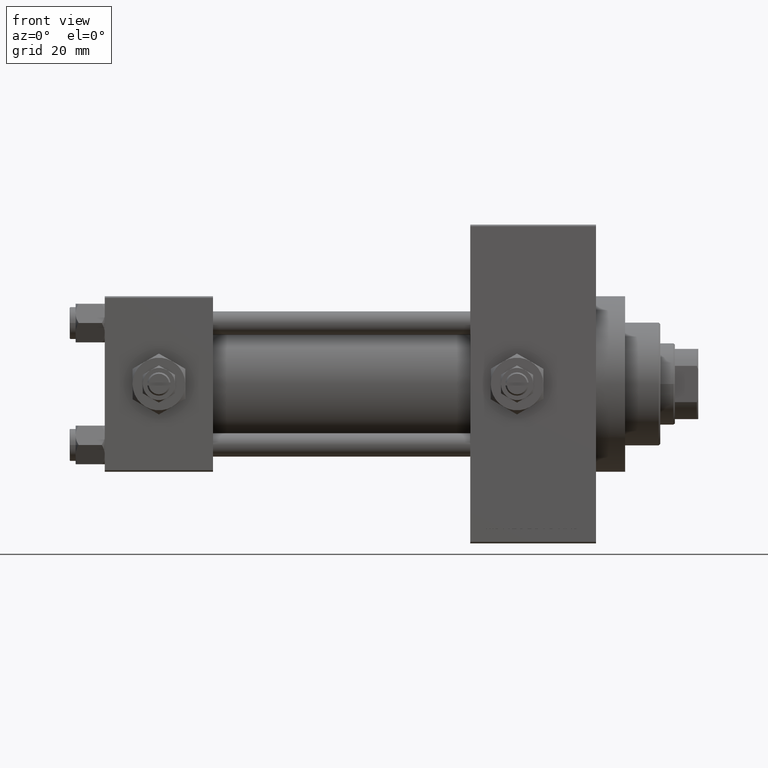
[diagram: clean part render]
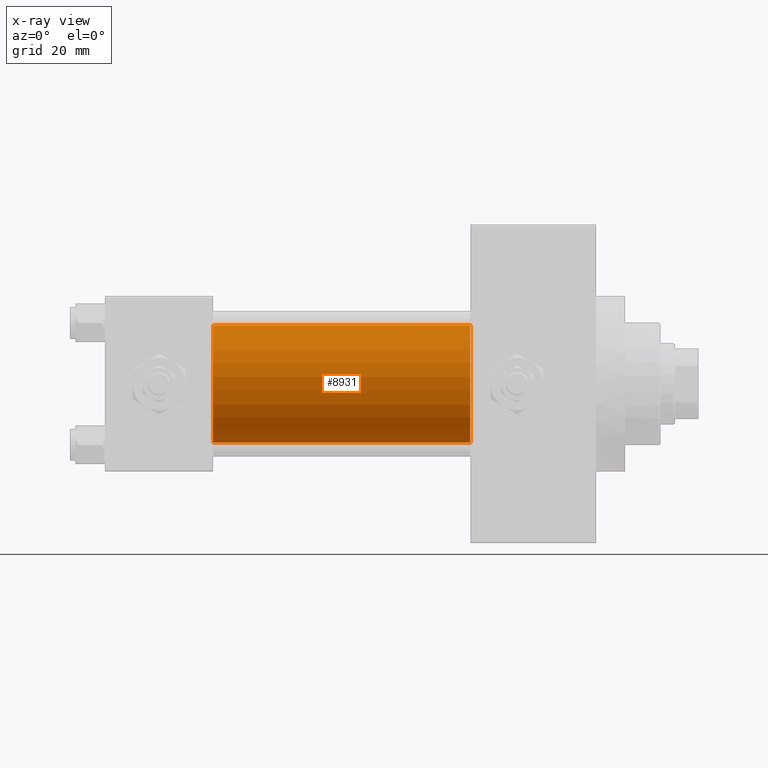
[diagram: x-ray — body ghosted, one internal face saturated and labeled with its STEP entity id]
A machine part, front view, then the same camera in x-ray: the body is ghosted and one INTERNAL B-rep face — a face not visible from any outside direction — is saturated and labeled: STEP entity #8931.
In plain terms, the highlighted cylindrical surface (partial cylindrical patch) has radius 20 mm, axis along (-1, -0, -0).
Its self-contained STEP definition (entity closure, byte-faithful):
#37 = EDGE_CURVE ( 'NONE', #5220, #30837, #23373, .T. ) ;
#1335 = ORIENTED_EDGE ( 'NONE', *, *, #49069, .F. ) ;
#1901 = DIRECTION ( 'NONE',  ( 0.000000000000000000, 0.000000000000000000, -1.000000000000000000 ) ) ;
#2475 = CARTESIAN_POINT ( 'NONE',  ( 37.00000000000000000, -2.602085213965210642E-15, 20.00000000000000000 ) ) ;
#5220 = VERTEX_POINT ( 'NONE', #41985 ) ;
#8931 = ADVANCED_FACE ( 'NONE', ( #15489 ), #15734, .F. ) ;
#15489 = FACE_OUTER_BOUND ( 'NONE', #33618, .T. ) ;
#15734 = CYLINDRICAL_SURFACE ( 'NONE', #30148, 20.00000000000000000 ) ;
#15987 = CARTESIAN_POINT ( 'NONE',  ( 125.0000000000000000, -2.602085213965210642E-15, 0.000000000000000000 ) ) ;
#16707 = CARTESIAN_POINT ( 'NONE',  ( 125.0000000000000000, -2.602085213965210642E-15, 0.000000000000000000 ) ) ;
#16793 = EDGE_CURVE ( 'NONE', #17759, #5220, #24020, .T. ) ;
#17700 = CARTESIAN_POINT ( 'NONE',  ( 37.00000000000000000, -1.527916156705042519E-16, -20.00000000000000000 ) ) ;
#17759 = VERTEX_POINT ( 'NONE', #28536 ) ;
#18159 = ORIENTED_EDGE ( 'NONE', *, *, #37, .T. ) ;
#21480 = VERTEX_POINT ( 'NONE', #2475 ) ;
#21612 = DIRECTION ( 'NONE',  ( -1.000000000000000000, -0.000000000000000000, -0.000000000000000000 ) ) ;
#22104 = LINE ( 'NONE', #37407, #37022 ) ;
#22456 = ORIENTED_EDGE ( 'NONE', *, *, #44538, .F. ) ;
#23373 = LINE ( 'NONE', #38930, #27531 ) ;
#24020 = CIRCLE ( 'NONE', #44053, 20.00000000000000000 ) ;
#27531 = VECTOR ( 'NONE', #28153, 1000.000000000000000 ) ;
#28153 = DIRECTION ( 'NONE',  ( -1.000000000000000000, -0.000000000000000000, -0.000000000000000000 ) ) ;
#28536 = CARTESIAN_POINT ( 'NONE',  ( 125.0000000000000000, -2.602085213965210642E-15, 20.00000000000000000 ) ) ;
#30148 = AXIS2_PLACEMENT_3D ( 'NONE', #15987, #38561, #42333 ) ;
#30837 = VERTEX_POINT ( 'NONE', #17700 ) ;
#31365 = DIRECTION ( 'NONE',  ( 0.000000000000000000, 0.000000000000000000, -1.000000000000000000 ) ) ;
#33618 = EDGE_LOOP ( 'NONE', ( #49546, #18159, #22456, #1335 ) ) ;
#35866 = CARTESIAN_POINT ( 'NONE',  ( 37.00000000000000000, -2.602085213965210642E-15, 0.000000000000000000 ) ) ;
#36110 = DIRECTION ( 'NONE',  ( 1.000000000000000000, 0.000000000000000000, 0.000000000000000000 ) ) ;
#37022 = VECTOR ( 'NONE', #21612, 1000.000000000000000 ) ;
#37407 = CARTESIAN_POINT ( 'NONE',  ( 125.0000000000000000, -2.602085213965210642E-15, 20.00000000000000000 ) ) ;
#38561 = DIRECTION ( 'NONE',  ( -1.000000000000000000, -0.000000000000000000, -0.000000000000000000 ) ) ;
#38930 = CARTESIAN_POINT ( 'NONE',  ( 125.0000000000000000, -1.527916156705042519E-16, -20.00000000000000000 ) ) ;
#40079 = AXIS2_PLACEMENT_3D ( 'NONE', #35866, #36110, #31365 ) ;
#40869 = CIRCLE ( 'NONE', #40079, 20.00000000000000000 ) ;
#41985 = CARTESIAN_POINT ( 'NONE',  ( 125.0000000000000000, -1.527916156705042519E-16, -20.00000000000000000 ) ) ;
#42333 = DIRECTION ( 'NONE',  ( 0.000000000000000000, 0.000000000000000000, 1.000000000000000000 ) ) ;
#43316 = DIRECTION ( 'NONE',  ( 1.000000000000000000, 0.000000000000000000, 0.000000000000000000 ) ) ;
#44053 = AXIS2_PLACEMENT_3D ( 'NONE', #16707, #43316, #1901 ) ;
#44538 = EDGE_CURVE ( 'NONE', #21480, #30837, #40869, .T. ) ;
#49069 = EDGE_CURVE ( 'NONE', #17759, #21480, #22104, .T. ) ;
#49546 = ORIENTED_EDGE ( 'NONE', *, *, #16793, .T. ) ;